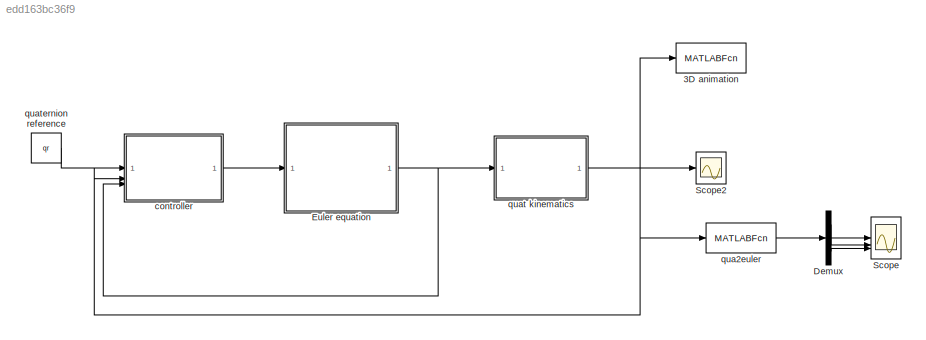
MODEL slx_edd163bc36f9
KIND model
CONFIG AbsTol = auto
CONFIG EnableMultiTasking = on
CONFIG FixedStep = auto
CONFIG MaxStep = auto
CONFIG MinStep = auto
CONFIG RelTol = 1e-3
CONFIG SampleTimeConstraint = Unconstrained
CONFIG SolverName = ode23
CONFIG StartTime = 0.0
CONFIG StopTime = Tfin
BLOCK [MATLABFcn] 3D animation
  MATLABFcn = animation_rot(hr,u)
  OutputDimensions = 0
BLOCK [Demux] Demux
  Outputs = 3
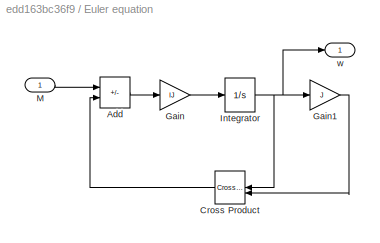
BLOCK [SubSystem] Euler equation
BLOCK [Sum] Euler equation/Add
  IconShape = rectangular
  Inputs = +-
BLOCK [Reference] Euler equation/Cross Product  REF=vrlib/Utilities/Cross Product
  NameLocation = top
  SourceBlock = vrlib/Utilities/Cross Product
  SourceType = Cross Product
BLOCK [Gain] Euler equation/Gain
  Gain = IJ
  Multiplication = Matrix(K*u)
BLOCK [Gain] Euler equation/Gain1
  Gain = J
  Multiplication = Matrix(K*u)
BLOCK [Integrator] Euler equation/Integrator
  InitialCondition = w0
BLOCK [Inport] Euler equation/M
BLOCK [Outport] Euler equation/w
  VectorParamsAs1DForOutWhenUnconnected = off
BLOCK [Scope] Scope
  Floating = off
  NumInputPorts = 3
  ScopeSpecificationString = Simulink.scopes.TimeScopeBlockCfg('CurrentConfiguration', extmgr.ConfigurationSet(extmgr.Configuration('Core','General UI',true),extmgr.Configuration('Core','Source UI',true),extmgr.Configuration('Sources','WiredSimulink',true),extmgr.Configuration('Visuals','Time Domain',true,'SerializedDisplays',{struct('MinYLimReal','-3.67316','MaxYLimReal','3.2462','YLabelReal','','MinYLimMag','0.00000','MaxYL...<+2676ch>
BLOCK [Scope] Scope2
  Floating = off
  NumInputPorts = 1
  ScopeSpecificationString = Simulink.scopes.TimeScopeBlockCfg('CurrentConfiguration', extmgr.ConfigurationSet(extmgr.Configuration('Core','General UI',true,'FigureColor',[1 1 1]),extmgr.Configuration('Core','Source UI',true),extmgr.Configuration('Sources','WiredSimulink',true,'DataLoggingVariableName','ScopeData1'),extmgr.Configuration('Visuals','Time Domain',true,'SerializedDisplays',{struct('MinYLimReal','-1.19114','MaxYLi...<+2140ch>
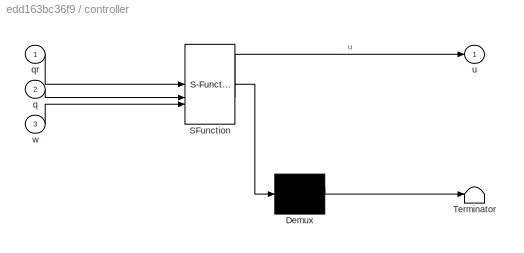
BLOCK [SubSystem] controller
  ErrorFcn = Stateflow.Translate.translate
  PermitHierarchicalResolution = ExplicitOnly
  SFBlockType = MATLAB Function
  TreatAsAtomicUnit = on
BLOCK [Demux] controller/ Demux 
  Outputs = 1
BLOCK [S-Function] controller/ SFunction 
  EnableBusSupport = on
  FunctionName = sf_sfun
  PortCounts = [3 2]
  SFcnIsStateOwnerBlock = off
  SFunctionDeploymentMode = off
  Tag = Stateflow S-Function 2
BLOCK [Terminator] controller/ Terminator 
BLOCK [Inport] controller/q
  Port = 2
BLOCK [Inport] controller/qr
BLOCK [Outport] controller/u
  VectorParamsAs1DForOutWhenUnconnected = off
BLOCK [Inport] controller/w
  Port = 3
BLOCK [MATLABFcn] qua2euler
  MATLABFcn = qua2euler(u)
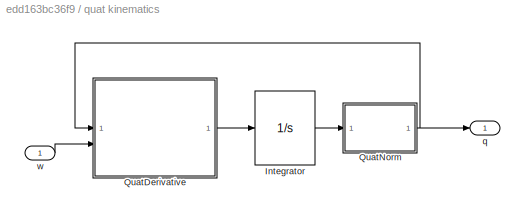
BLOCK [SubSystem] quat kinematics
  AncestorBlock = lib_rotations_2014/quat kinematics
BLOCK [Integrator] quat kinematics/Integrator
  InitialCondition = q0
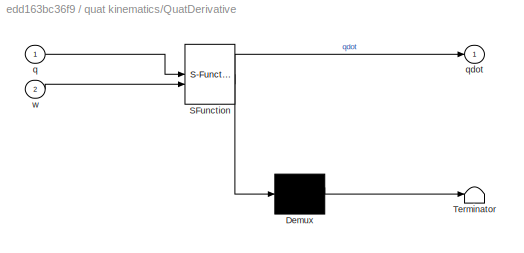
BLOCK [SubSystem] quat kinematics/QuatDerivative
  ErrorFcn = Stateflow.Translate.translate
  PermitHierarchicalResolution = ExplicitOnly
  SFBlockType = MATLAB Function
  TreatAsAtomicUnit = on
BLOCK [Demux] quat kinematics/QuatDerivative/ Demux 
  Outputs = 1
BLOCK [S-Function] quat kinematics/QuatDerivative/ SFunction 
  EnableBusSupport = on
  FunctionName = sf_sfun
  PortCounts = [2 2]
  SFcnIsStateOwnerBlock = off
  SFunctionDeploymentMode = off
  Tag = Stateflow S-Function 1
BLOCK [Terminator] quat kinematics/QuatDerivative/ Terminator 
BLOCK [Inport] quat kinematics/QuatDerivative/q
BLOCK [Outport] quat kinematics/QuatDerivative/qdot
  VectorParamsAs1DForOutWhenUnconnected = off
BLOCK [Inport] quat kinematics/QuatDerivative/w
  Port = 2
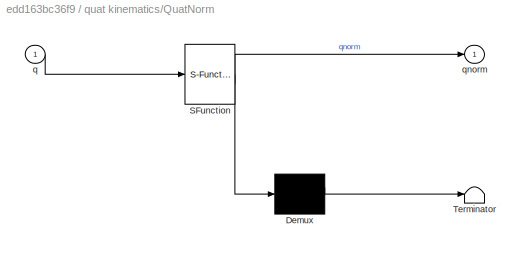
BLOCK [SubSystem] quat kinematics/QuatNorm
  ErrorFcn = Stateflow.Translate.translate
  PermitHierarchicalResolution = ExplicitOnly
  SFBlockType = MATLAB Function
  TreatAsAtomicUnit = on
BLOCK [Demux] quat kinematics/QuatNorm/ Demux 
  Outputs = 1
BLOCK [S-Function] quat kinematics/QuatNorm/ SFunction 
  EnableBusSupport = on
  FunctionName = sf_sfun
  PortCounts = [1 2]
  SFcnIsStateOwnerBlock = off
  SFunctionDeploymentMode = off
  Tag = Stateflow S-Function 3
BLOCK [Terminator] quat kinematics/QuatNorm/ Terminator 
BLOCK [Inport] quat kinematics/QuatNorm/q
BLOCK [Outport] quat kinematics/QuatNorm/qnorm
  VectorParamsAs1DForOutWhenUnconnected = off
BLOCK [Outport] quat kinematics/q
  PortDimensions = 4
  VectorParamsAs1DForOutWhenUnconnected = off
BLOCK [Inport] quat kinematics/w
  PortDimensions = 3
BLOCK [Constant] quaternion reference
  Value = qr
LINE Demux:1 -> Scope:1
LINE Demux:2 -> Scope:2
LINE Demux:3 -> Scope:3
LINE Euler equation/Add:1 -> Euler equation/Gain:1
LINE Euler equation/Cross Product:1 -> Euler equation/Add:2
LINE Euler equation/Gain1:1 -> Euler equation/Cross Product:2
LINE Euler equation/Gain:1 -> Euler equation/Integrator:1
NET Euler equation/Integrator:1 -> Euler equation/Cross Product:1, Euler equation/Gain1:1, Euler equation/w:1
LINE Euler equation/M:1 -> Euler equation/Add:1
NET Euler equation:1 -> controller:3, quat kinematics:1
LINE controller:1 -> Euler equation:1
LINE qua2euler:1 -> Demux:1
NET quat kinematics:1 -> 3D animation:1, Scope2:1, controller:2, qua2euler:1
LINE quaternion reference:1 -> controller:1
note: NET lines group one-source signal fan-out (src -> all destinations, sorted); 1:1 wires keep LINE
CHART quat kinematics/QuatDerivative states=1 transitions=1
  STATE_LABEL 'eML_blk_kernel()'
  STATE_LABEL 'SCRIPT:\nfunction qdot= QuatDerivative(q,w)\n%#codegen\nomegaq=[0; w];\nQ=[q(1) -q(2) -q(3) -q(4);\n    q(2) q(1) -q(4) q(3);\n    q(3) q(4) q(1) -q(2);\n    q(4) -q(3) q(2) q(1)];\nqdot=Q*omegaq/2;\n'
CHART controller states=1 transitions=1
  STATE_LABEL 'eML_blk_kernel()'
  STATE_LABEL "SCRIPT:\nfunction u = ctrl_reg(qr,q,w)\n%#codegen\n\nkp=20;\nkd=500;\n\nqs=[q(1);-q(2:4)];\ndq=quatprod(qs,qr);\n\nu=kp*dq(2:4)-kd*w;\n%u=kp*sign(dq(1))*dq(2:4)-kd*w;\n%u=kp*dq(2:4)-kd*(1+dq(2:4)'*dq(2:4))*w;\n%u=kp*sign(dq(1))*dq(2:4)-kd*(1+dq(2:4)'*dq(2:4))*w;\n\nend\n\n"
CHART quat kinematics/QuatNorm states=1 transitions=1
  STATE_LABEL 'eML_blk_kernel()'
  STATE_LABEL "SCRIPT:\nfunction qnorm = QuatNorm(q)\n%#codegen\nqnorm=zeros(4,1);\nq2=sqrt(q'*q);\nqnorm=q/q2;\n"
CHART  states=0 transitions=0
CHART  states=0 transitions=0
CHART  states=0 transitions=0
